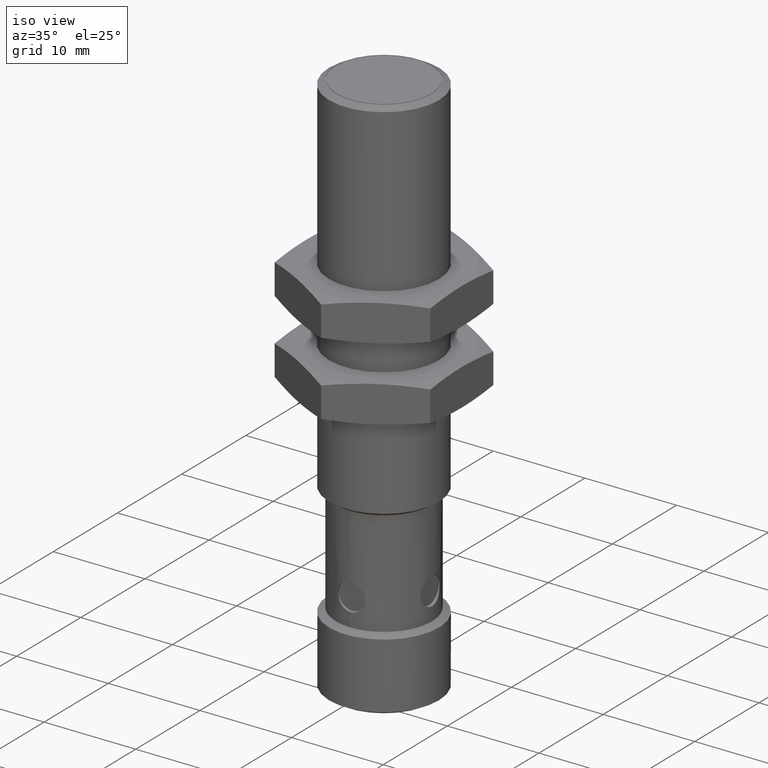
[diagram: clean part render]
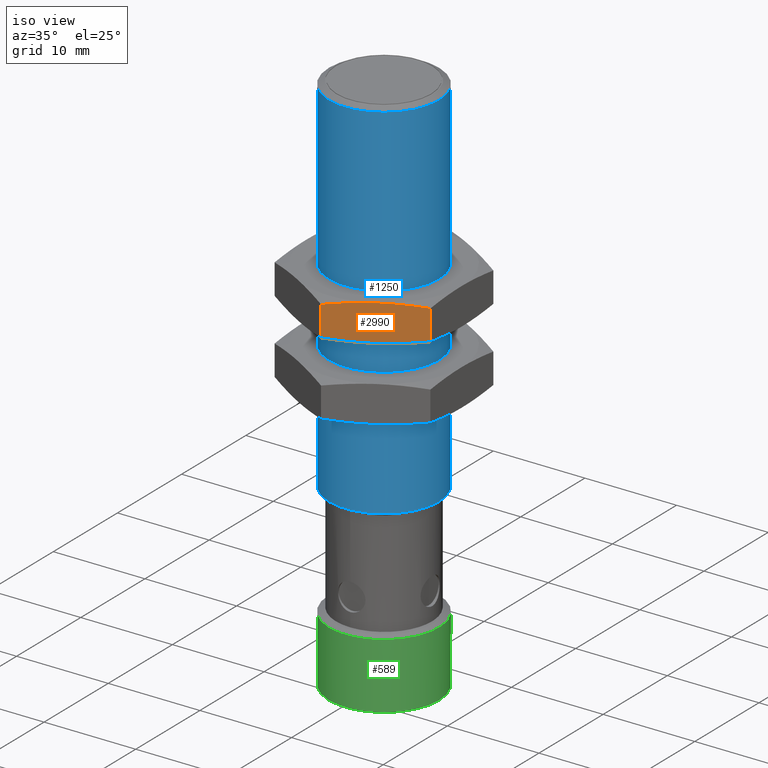
[diagram: same view with three faces highlighted in distinct colors, each labeled with its STEP entity id]
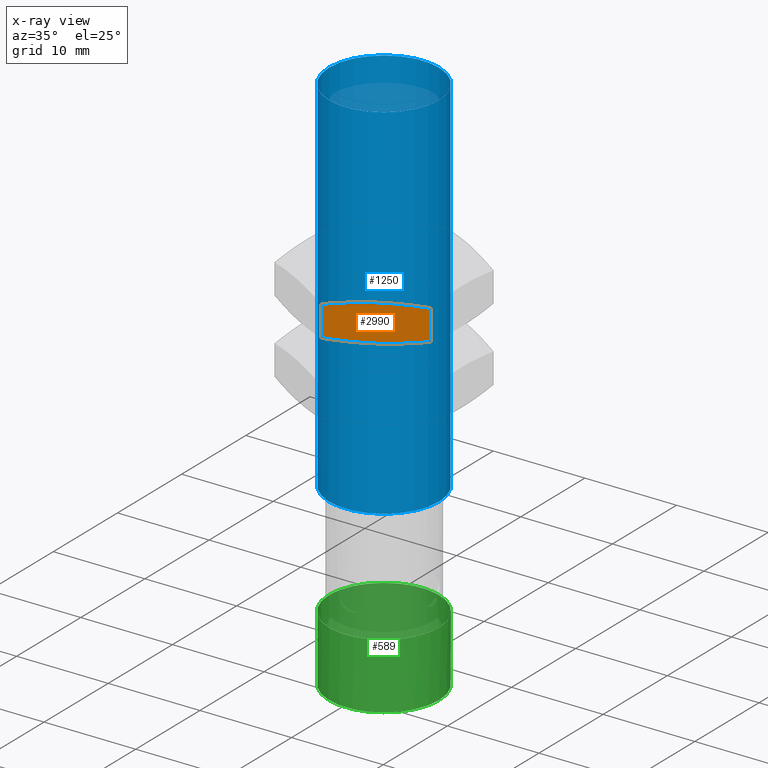
[diagram: x-ray of the same camera — body ghosted, the three highlighted faces saturated]
A machine part, iso view with three faces highlighted in distinct colors.
The next image is the same camera in x-ray (body ghosted, the three faces saturated) — at least one of them is partly hidden behind the body in this view.
Their STEP definitions:

[orange] entity #2990 — the highlighted planar face has unit normal (-0.5, 0.866, 0).
#18 = DIRECTION ( 'NONE',  ( 0.0000000000000000000, 1.000000000000000000, 0.0000000000000000000 ) ) ;
#198 = VERTEX_POINT ( 'NONE', #1297 ) ;
#219 = CARTESIAN_POINT ( 'NONE',  ( 100.7318378915214225, -35.93609889415802172, -25.23719409769666910 ) ) ;
#231 = CARTESIAN_POINT ( 'NONE',  ( 100.8608090603448346, -36.09357920911865136, -25.46057871481036372 ) ) ;
#242 = CARTESIAN_POINT ( 'NONE',  ( 100.6996602037143447, -35.94138042840749137, -25.18146070754471566 ) ) ;
#249 = CARTESIAN_POINT ( 'NONE',  ( 100.7965724618033079, -36.09357920911864426, -25.34931766243101237 ) ) ;
#292 = ORIENTED_EDGE ( 'NONE', *, *, #2507, .F. ) ;
#347 = VERTEX_POINT ( 'NONE', #883 ) ;
#392 = ORIENTED_EDGE ( 'NONE', *, *, #2307, .F. ) ;
#449 = VECTOR ( 'NONE', #1410, 39.37007874015748143 ) ;
#483 = DIRECTION ( 'NONE',  ( 0.8660254037844387076, -0.0000000000000000000, 0.4999999999999998890 ) ) ;
#601 = CARTESIAN_POINT ( 'NONE',  ( 100.8608090591804824, -35.94997058742016094, -25.46057871279363738 ) ) ;
#736 = ORIENTED_EDGE ( 'NONE', *, *, #3031, .F. ) ;
#797 = EDGE_CURVE ( 'NONE', #2850, #198, #1138, .T. ) ;
#883 = CARTESIAN_POINT ( 'NONE',  ( 100.6676012930963395, -36.07970751554452704, -25.12593304551902662 ) ) ;
#983 = CARTESIAN_POINT ( 'NONE',  ( 100.7642051767205942, -35.93609889415802172, -25.29325588016469695 ) ) ;
#1138 = LINE ( 'NONE', #2341, #449 ) ;
#1177 = PLANE ( 'NONE',  #2791 ) ;
#1188 = CARTESIAN_POINT ( 'NONE',  ( 100.8608090591804824, -35.94997058742016094, -25.46057871279363738 ) ) ;
#1211 = B_SPLINE_CURVE_WITH_KNOTS ( 'NONE', 3,
 ( #1188, #2411, #1687, #983 ),
 .UNSPECIFIED., .F., .F.,
 ( 4, 4 ),
 ( 0.0000000000000000000, 0.004920109385238897841 ),
 .UNSPECIFIED. ) ;
#1254 = B_SPLINE_CURVE_WITH_KNOTS ( 'NONE', 3,
 ( #2124, #249, #2355, #1403 ),
 .UNSPECIFIED., .F., .F.,
 ( 4, 4 ),
 ( 0.0000000000000000000, 0.004920109514919247633 ),
 .UNSPECIFIED. ) ;
#1297 = CARTESIAN_POINT ( 'NONE',  ( 100.8608090605700340, -36.07970751548418775, -25.46057871520040905 ) ) ;
#1344 = CARTESIAN_POINT ( 'NONE',  ( 100.6676012930963395, -36.09357920911865136, -25.12593304551902662 ) ) ;
#1395 = CARTESIAN_POINT ( 'NONE',  ( 100.6996602052465306, -36.08829767516539277, -25.18146071019853949 ) ) ;
#1396 = CARTESIAN_POINT ( 'NONE',  ( 100.6676012942606917, -35.94997058742016094, -25.12593304350230028 ) ) ;
#1403 = CARTESIAN_POINT ( 'NONE',  ( 100.8608090605700340, -36.07970751548418775, -25.46057871520040905 ) ) ;
#1410 = DIRECTION ( 'NONE',  ( -0.0000000000000000000, -1.000000000000000000, -0.0000000000000000000 ) ) ;
#1634 = EDGE_CURVE ( 'NONE', #347, #2303, #2136, .T. ) ;
#1687 = CARTESIAN_POINT ( 'NONE',  ( 100.7965724609386626, -35.93609889415802172, -25.34931766093339789 ) ) ;
#1785 = ORIENTED_EDGE ( 'NONE', *, *, #2211, .T. ) ;
#1881 = CARTESIAN_POINT ( 'NONE',  ( 100.6676012930963395, -36.07970751554452704, -25.12593304551902662 ) ) ;
#1932 = CARTESIAN_POINT ( 'NONE',  ( 100.7642051767205942, -36.09357920911865136, -25.29325588016469695 ) ) ;
#1979 = VERTEX_POINT ( 'NONE', #2220 ) ;
#2091 = CARTESIAN_POINT ( 'NONE',  ( 100.6676012942606917, -35.94997058742016094, -25.12593304350230028 ) ) ;
#2102 = CARTESIAN_POINT ( 'NONE',  ( 100.7642051767205942, -36.09357920911865136, -25.29325588016469695 ) ) ;
#2124 = CARTESIAN_POINT ( 'NONE',  ( 100.7642051767205942, -36.09357920911865136, -25.29325588016469695 ) ) ;
#2128 = CARTESIAN_POINT ( 'NONE',  ( 100.7642051767205942, -35.93609889415802172, -25.29325588016469695 ) ) ;
#2136 = B_SPLINE_CURVE_WITH_KNOTS ( 'NONE', 3,
 ( #1881, #1395, #2792, #2102 ),
 .UNSPECIFIED., .F., .F.,
 ( 4, 4 ),
 ( 1.110223024625156540E-16, 0.004920109503399677613 ),
 .UNSPECIFIED. ) ;
#2156 = ORIENTED_EDGE ( 'NONE', *, *, #797, .T. ) ;
#2211 = EDGE_CURVE ( 'NONE', #347, #2946, #2522, .T. ) ;
#2220 = CARTESIAN_POINT ( 'NONE',  ( 100.7642051767205942, -35.93609889415802172, -25.29325588016469695 ) ) ;
#2303 = VERTEX_POINT ( 'NONE', #1932 ) ;
#2307 = EDGE_CURVE ( 'NONE', #2850, #1979, #1211, .T. ) ;
#2341 = CARTESIAN_POINT ( 'NONE',  ( 100.8608090603448346, -36.09357920911865136, -25.46057871481036372 ) ) ;
#2355 = CARTESIAN_POINT ( 'NONE',  ( 100.8287501485469164, -36.08829767509939757, -25.40505105074098680 ) ) ;
#2411 = CARTESIAN_POINT ( 'NONE',  ( 100.8287501459862909, -35.94138042724156179, -25.40505104786603852 ) ) ;
#2507 = EDGE_CURVE ( 'NONE', #1979, #2946, #2950, .T. ) ;
#2522 = LINE ( 'NONE', #1344, #2967 ) ;
#2704 = FACE_OUTER_BOUND ( 'NONE', #2892, .T. ) ;
#2791 = AXIS2_PLACEMENT_3D ( 'NONE', #231, #483, #2833 ) ;
#2792 = CARTESIAN_POINT ( 'NONE',  ( 100.7318378917143065, -36.09357920911865136, -25.23719409803074853 ) ) ;
#2807 = ORIENTED_EDGE ( 'NONE', *, *, #1634, .F. ) ;
#2833 = DIRECTION ( 'NONE',  ( 0.4999999999999998335, 0.0000000000000000000, -0.8660254037844385966 ) ) ;
#2850 = VERTEX_POINT ( 'NONE', #601 ) ;
#2892 = EDGE_LOOP ( 'NONE', ( #736, #2807, #1785, #292, #392, #2156 ) ) ;
#2946 = VERTEX_POINT ( 'NONE', #2091 ) ;
#2950 = B_SPLINE_CURVE_WITH_KNOTS ( 'NONE', 3,
 ( #2128, #219, #242, #1396 ),
 .UNSPECIFIED., .F., .F.,
 ( 4, 4 ),
 ( 0.0000000000000000000, 0.004920109532330769510 ),
 .UNSPECIFIED. ) ;
#2967 = VECTOR ( 'NONE', #18, 39.37007874015748143 ) ;
#2990 = ADVANCED_FACE ( 'NONE', ( #2704 ), #1177, .F. ) ;
#3031 = EDGE_CURVE ( 'NONE', #2303, #198, #1254, .T. ) ;

[blue] entity #1250 — the highlighted cylindrical surface (bore or boss wall) has radius 6 mm, axis along (0, 0, -1).
#87 = DIRECTION ( 'NONE',  ( -0.0000000000000000000, -1.000000000000000000, -0.0000000000000000000 ) ) ;
#302 = DIRECTION ( 'NONE',  ( 0.0000000000000000000, 0.0000000000000000000, 1.000000000000000000 ) ) ;
#326 = CARTESIAN_POINT ( 'NONE',  ( 101.0540168275933723, -35.19003590203203657, -25.12593304551903017 ) ) ;
#348 = CARTESIAN_POINT ( 'NONE',  ( 101.0540168275933723, -35.22897141722869918, -25.12593304551903017 ) ) ;
#507 = CARTESIAN_POINT ( 'NONE',  ( 101.0540168275933723, -36.78829790248743592, -25.12593304551903017 ) ) ;
#629 = EDGE_CURVE ( 'NONE', #2092, #2092, #2311, .T. ) ;
#630 = CYLINDRICAL_SURFACE ( 'NONE', #1477, 0.2362204724409494583 ) ;
#732 = DIRECTION ( 'NONE',  ( 0.0000000000000000000, 1.000000000000000000, 0.0000000000000000000 ) ) ;
#790 = EDGE_LOOP ( 'NONE', ( #2615 ) ) ;
#819 = DIRECTION ( 'NONE',  ( 0.0000000000000000000, 0.0000000000000000000, 1.000000000000000000 ) ) ;
#930 = CARTESIAN_POINT ( 'NONE',  ( 101.0540168275933723, -35.22897141722869918, -24.88971257307808216 ) ) ;
#982 = CARTESIAN_POINT ( 'NONE',  ( 101.0540168275933723, -36.78829790248743592, -24.88971257307808216 ) ) ;
#1145 = EDGE_LOOP ( 'NONE', ( #1489 ) ) ;
#1250 = ADVANCED_FACE ( 'NONE', ( #1990, #1282 ), #630, .T. ) ;
#1282 = FACE_OUTER_BOUND ( 'NONE', #790, .T. ) ;
#1477 = AXIS2_PLACEMENT_3D ( 'NONE', #326, #2874, #302 ) ;
#1489 = ORIENTED_EDGE ( 'NONE', *, *, #2643, .T. ) ;
#1990 = FACE_OUTER_BOUND ( 'NONE', #1145, .T. ) ;
#2092 = VERTEX_POINT ( 'NONE', #930 ) ;
#2186 = AXIS2_PLACEMENT_3D ( 'NONE', #507, #732, #2398 ) ;
#2233 = CIRCLE ( 'NONE', #2186, 0.2362204724409494583 ) ;
#2311 = CIRCLE ( 'NONE', #2494, 0.2362204724409494583 ) ;
#2398 = DIRECTION ( 'NONE',  ( 0.0000000000000000000, 0.0000000000000000000, 1.000000000000000000 ) ) ;
#2486 = VERTEX_POINT ( 'NONE', #982 ) ;
#2494 = AXIS2_PLACEMENT_3D ( 'NONE', #348, #87, #819 ) ;
#2615 = ORIENTED_EDGE ( 'NONE', *, *, #629, .T. ) ;
#2643 = EDGE_CURVE ( 'NONE', #2486, #2486, #2233, .T. ) ;
#2874 = DIRECTION ( 'NONE',  ( 0.0000000000000000000, 1.000000000000000000, 0.0000000000000000000 ) ) ;

[green] entity #589 — the highlighted cylindrical surface (bore or boss wall) has radius 6 mm, axis along (0, 0, -1).
#144 = CIRCLE ( 'NONE', #2281, 0.2362204724409494583 ) ;
#212 = ORIENTED_EDGE ( 'NONE', *, *, #2169, .F. ) ;
#260 = FACE_OUTER_BOUND ( 'NONE', #1826, .T. ) ;
#324 = VERTEX_POINT ( 'NONE', #1497 ) ;
#396 = DIRECTION ( 'NONE',  ( -0.0000000000000000000, -1.000000000000000000, -0.0000000000000000000 ) ) ;
#589 = ADVANCED_FACE ( 'NONE', ( #882, #260 ), #955, .T. ) ;
#648 = AXIS2_PLACEMENT_3D ( 'NONE', #1942, #2173, #2636 ) ;
#766 = AXIS2_PLACEMENT_3D ( 'NONE', #2080, #2309, #2822 ) ;
#871 = EDGE_LOOP ( 'NONE', ( #212 ) ) ;
#882 = FACE_OUTER_BOUND ( 'NONE', #871, .T. ) ;
#955 = CYLINDRICAL_SURFACE ( 'NONE', #648, 0.2362204724409494583 ) ;
#1497 = CARTESIAN_POINT ( 'NONE',  ( 101.2212418608976492, -34.74048554986075743, -25.29277398724571668 ) ) ;
#1574 = CARTESIAN_POINT ( 'NONE',  ( 101.0540168275933723, -34.45791563386009670, -25.12593304551903017 ) ) ;
#1826 = EDGE_LOOP ( 'NONE', ( #2729 ) ) ;
#1942 = CARTESIAN_POINT ( 'NONE',  ( 101.0540168275933723, -34.44200440596904400, -25.12593304551903017 ) ) ;
#1963 = CARTESIAN_POINT ( 'NONE',  ( 101.0540168275933723, -34.45791563386009670, -24.88971257307808216 ) ) ;
#2080 = CARTESIAN_POINT ( 'NONE',  ( 101.0540168275933723, -34.74048554986075743, -25.12593304551903017 ) ) ;
#2169 = EDGE_CURVE ( 'NONE', #324, #324, #2495, .T. ) ;
#2173 = DIRECTION ( 'NONE',  ( 0.0000000000000000000, 1.000000000000000000, 0.0000000000000000000 ) ) ;
#2281 = AXIS2_PLACEMENT_3D ( 'NONE', #1574, #396, #2969 ) ;
#2309 = DIRECTION ( 'NONE',  ( -0.0000000000000000000, -1.000000000000000000, -0.0000000000000000000 ) ) ;
#2495 = CIRCLE ( 'NONE', #766, 0.2362204724401826827 ) ;
#2555 = VERTEX_POINT ( 'NONE', #1963 ) ;
#2636 = DIRECTION ( 'NONE',  ( 0.0000000000000000000, 0.0000000000000000000, 1.000000000000000000 ) ) ;
#2729 = ORIENTED_EDGE ( 'NONE', *, *, #2865, .T. ) ;
#2822 = DIRECTION ( 'NONE',  ( 0.7079193076570390319, 0.0000000000000000000, -0.7062933199785896843 ) ) ;
#2865 = EDGE_CURVE ( 'NONE', #2555, #2555, #144, .T. ) ;
#2969 = DIRECTION ( 'NONE',  ( 0.0000000000000000000, 0.0000000000000000000, 1.000000000000000000 ) ) ;